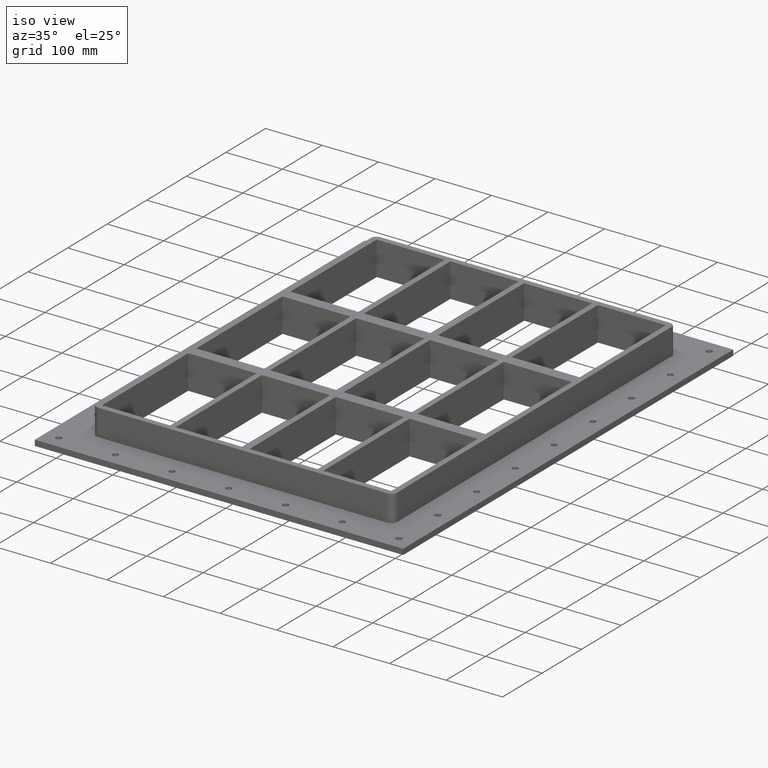
[diagram: clean part render]
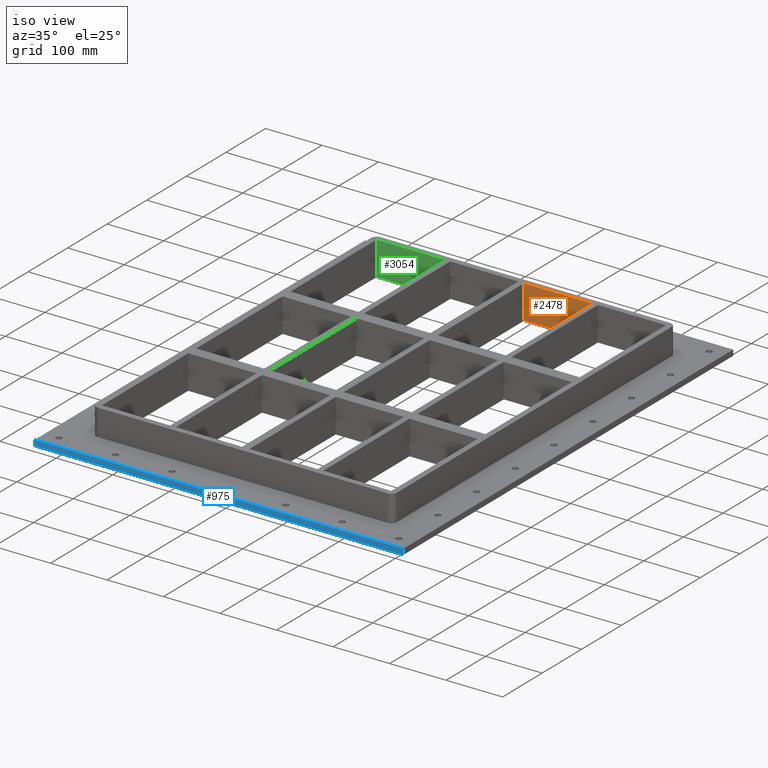
[diagram: same view with three faces highlighted in distinct colors, each labeled with its STEP entity id]
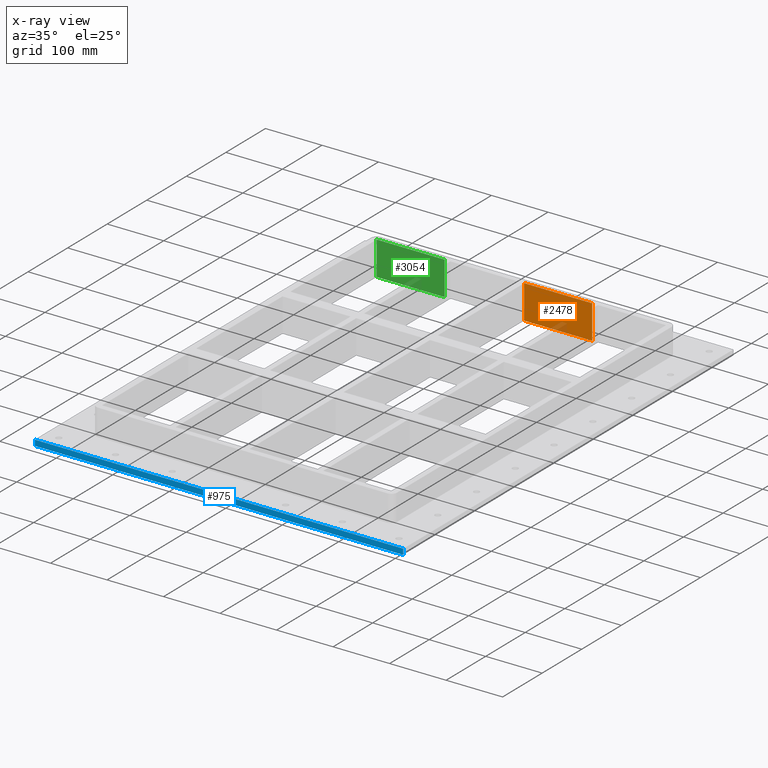
[diagram: x-ray of the same camera — body ghosted, the three highlighted faces saturated]
A machine part, iso view with three faces highlighted in distinct colors.
The next image is the same camera in x-ray (body ghosted, the three faces saturated) — at least one of them is partly hidden behind the body in this view.
Their STEP definitions:

[orange] entity #2478 — the highlighted planar face has unit normal (0, 1, 0).
#1680=CARTESIAN_POINT('',(4.999999999999869,347.00000000000017,-30.0));
#1681=VERTEX_POINT('',#1680);
#1698=CARTESIAN_POINT('',(125.49999999999991,347.00000000000017,-30.0));
#1699=VERTEX_POINT('',#1698);
#1706=CARTESIAN_POINT('',(125.49999999999993,347.00000000000017,-30.0));
#1707=DIRECTION('',(-1.0,0.0,0.0));
#1708=VECTOR('',#1707,120.50000000000006);
#1709=LINE('',#1706,#1708);
#1710=EDGE_CURVE('',#1699,#1681,#1709,.T.);
#2389=CARTESIAN_POINT('',(4.999999999999869,347.00000000000017,30.0));
#2390=VERTEX_POINT('',#2389);
#2391=CARTESIAN_POINT('',(4.999999999999869,347.00000000000017,30.0));
#2392=DIRECTION('',(0.0,0.0,-1.0));
#2393=VECTOR('',#2392,60.0);
#2394=LINE('',#2391,#2393);
#2395=EDGE_CURVE('',#2390,#1681,#2394,.T.);
#2445=CARTESIAN_POINT('',(125.49999999999991,347.00000000000017,30.0));
#2446=VERTEX_POINT('',#2445);
#2453=CARTESIAN_POINT('',(125.49999999999991,347.00000000000017,30.0));
#2454=DIRECTION('',(0.0,0.0,-1.0));
#2455=VECTOR('',#2454,60.0);
#2456=LINE('',#2453,#2455);
#2457=EDGE_CURVE('',#2446,#1699,#2456,.T.);
#2462=CARTESIAN_POINT('',(4.999999999999869,347.00000000000017,30.0));
#2463=DIRECTION('',(0.0,1.0,0.0));
#2464=DIRECTION('',(1.0,0.0,0.0));
#2465=AXIS2_PLACEMENT_3D('',#2462,#2463,#2464);
#2466=PLANE('',#2465);
#2467=ORIENTED_EDGE('',*,*,#1710,.F.);
#2468=ORIENTED_EDGE('',*,*,#2457,.F.);
#2469=CARTESIAN_POINT('',(4.999999999999869,347.00000000000017,30.0));
#2470=DIRECTION('',(1.0,0.0,0.0));
#2471=VECTOR('',#2470,120.50000000000006);
#2472=LINE('',#2469,#2471);
#2473=EDGE_CURVE('',#2390,#2446,#2472,.T.);
#2474=ORIENTED_EDGE('',*,*,#2473,.F.);
#2475=ORIENTED_EDGE('',*,*,#2395,.T.);
#2476=EDGE_LOOP('',(#2467,#2468,#2474,#2475));
#2477=FACE_OUTER_BOUND('',#2476,.T.);
#2478=ADVANCED_FACE('',(#2477),#2466,.F.);

[blue] entity #975 — the highlighted planar face has unit normal (0, -1, 0).
#857=CARTESIAN_POINT('',(-325.99999999999994,-417.0,-27.0));
#858=VERTEX_POINT('',#857);
#867=CARTESIAN_POINT('',(-325.99999999999994,-417.0,-17.0));
#868=VERTEX_POINT('',#867);
#869=CARTESIAN_POINT('',(-325.99999999999994,-417.0,-27.0));
#870=DIRECTION('',(0.0,0.0,1.0));
#871=VECTOR('',#870,10.0);
#872=LINE('',#869,#871);
#873=EDGE_CURVE('',#858,#868,#872,.T.);
#928=CARTESIAN_POINT('',(326.00000000000011,-417.0,-27.0));
#929=VERTEX_POINT('',#928);
#937=CARTESIAN_POINT('',(326.00000000000011,-417.0,-17.0));
#938=VERTEX_POINT('',#937);
#945=CARTESIAN_POINT('',(326.00000000000011,-417.0,-27.0));
#946=DIRECTION('',(0.0,0.0,1.0));
#947=VECTOR('',#946,10.0);
#948=LINE('',#945,#947);
#949=EDGE_CURVE('',#929,#938,#948,.T.);
#954=CARTESIAN_POINT('',(-325.99999999999994,-417.0,-27.0));
#955=DIRECTION('',(0.0,-1.0,0.0));
#956=DIRECTION('',(1.0,0.0,0.0));
#957=AXIS2_PLACEMENT_3D('',#954,#955,#956);
#958=PLANE('',#957);
#959=CARTESIAN_POINT('',(326.00000000000011,-417.0,-27.0));
#960=DIRECTION('',(-1.0,0.0,0.0));
#961=VECTOR('',#960,652.0);
#962=LINE('',#959,#961);
#963=EDGE_CURVE('',#929,#858,#962,.T.);
#964=ORIENTED_EDGE('',*,*,#963,.F.);
#965=ORIENTED_EDGE('',*,*,#949,.T.);
#966=CARTESIAN_POINT('',(-325.99999999999989,-417.0,-17.0));
#967=DIRECTION('',(1.0,0.0,0.0));
#968=VECTOR('',#967,652.0);
#969=LINE('',#966,#968);
#970=EDGE_CURVE('',#868,#938,#969,.T.);
#971=ORIENTED_EDGE('',*,*,#970,.F.);
#972=ORIENTED_EDGE('',*,*,#873,.F.);
#973=EDGE_LOOP('',(#964,#965,#971,#972));
#974=FACE_OUTER_BOUND('',#973,.T.);
#975=ADVANCED_FACE('',(#974),#958,.T.);

[green] entity #3054 — the highlighted planar face has unit normal (0, 1, 0).
#1884=CARTESIAN_POINT('',(-256.00000000000017,347.00000000000017,-30.0));
#1885=VERTEX_POINT('',#1884);
#1902=CARTESIAN_POINT('',(-135.50000000000011,347.00000000000017,-30.0));
#1903=VERTEX_POINT('',#1902);
#1910=CARTESIAN_POINT('',(-135.50000000000011,347.00000000000017,-30.0));
#1911=DIRECTION('',(-1.0,0.0,0.0));
#1912=VECTOR('',#1911,120.50000000000011);
#1913=LINE('',#1910,#1912);
#1914=EDGE_CURVE('',#1903,#1885,#1913,.T.);
#2965=CARTESIAN_POINT('',(-256.00000000000017,347.00000000000017,30.0));
#2966=VERTEX_POINT('',#2965);
#2967=CARTESIAN_POINT('',(-256.00000000000017,347.00000000000017,30.0));
#2968=DIRECTION('',(0.0,0.0,-1.0));
#2969=VECTOR('',#2968,60.0);
#2970=LINE('',#2967,#2969);
#2971=EDGE_CURVE('',#2966,#1885,#2970,.T.);
#3021=CARTESIAN_POINT('',(-135.50000000000011,347.00000000000017,30.0));
#3022=VERTEX_POINT('',#3021);
#3029=CARTESIAN_POINT('',(-135.50000000000011,347.00000000000017,30.0));
#3030=DIRECTION('',(0.0,0.0,-1.0));
#3031=VECTOR('',#3030,60.0);
#3032=LINE('',#3029,#3031);
#3033=EDGE_CURVE('',#3022,#1903,#3032,.T.);
#3038=CARTESIAN_POINT('',(-256.00000000000017,347.00000000000017,30.0));
#3039=DIRECTION('',(0.0,1.0,0.0));
#3040=DIRECTION('',(1.0,0.0,0.0));
#3041=AXIS2_PLACEMENT_3D('',#3038,#3039,#3040);
#3042=PLANE('',#3041);
#3043=ORIENTED_EDGE('',*,*,#1914,.F.);
#3044=ORIENTED_EDGE('',*,*,#3033,.F.);
#3045=CARTESIAN_POINT('',(-256.00000000000023,347.00000000000017,30.0));
#3046=DIRECTION('',(1.0,0.0,0.0));
#3047=VECTOR('',#3046,120.50000000000011);
#3048=LINE('',#3045,#3047);
#3049=EDGE_CURVE('',#2966,#3022,#3048,.T.);
#3050=ORIENTED_EDGE('',*,*,#3049,.F.);
#3051=ORIENTED_EDGE('',*,*,#2971,.T.);
#3052=EDGE_LOOP('',(#3043,#3044,#3050,#3051));
#3053=FACE_OUTER_BOUND('',#3052,.T.);
#3054=ADVANCED_FACE('',(#3053),#3042,.F.);